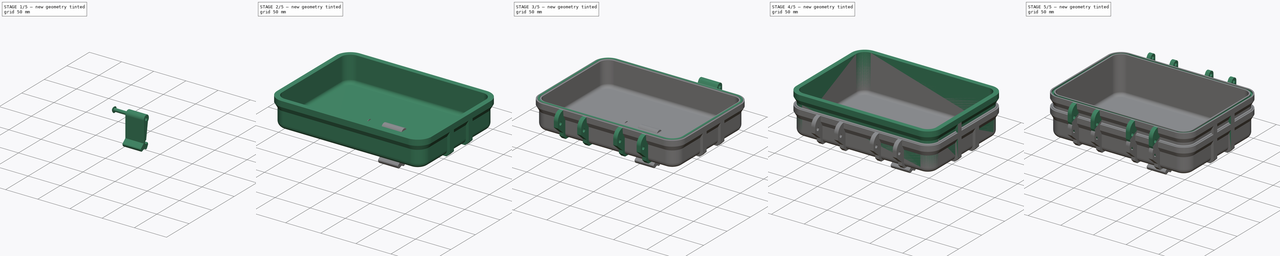
[diagram: build sequence overview — one tinted view per stage of 5, left to right]
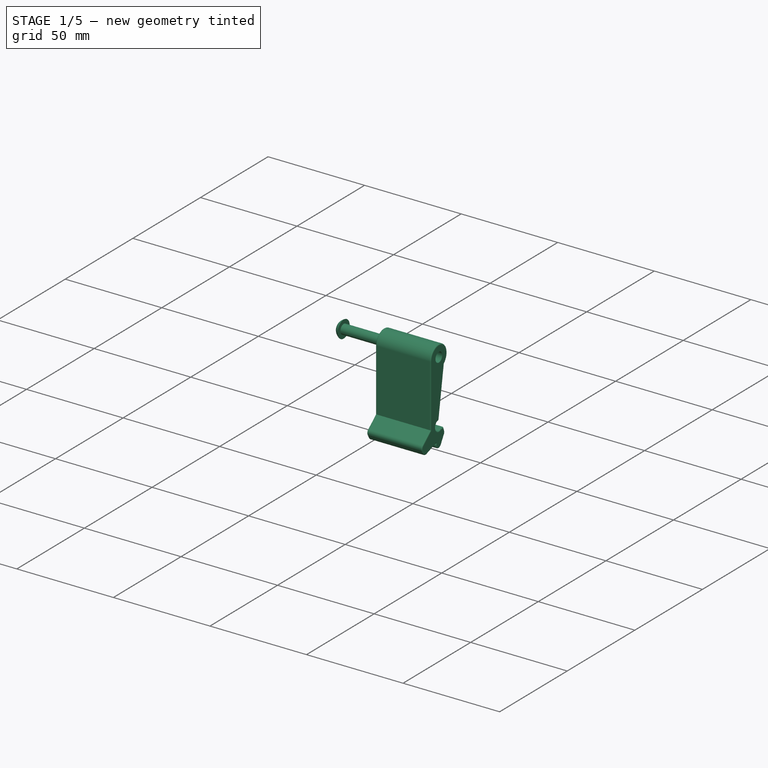
[diagram: stage 1 of 5 — iso view after this stage's code; geometry added in this stage tinted green]
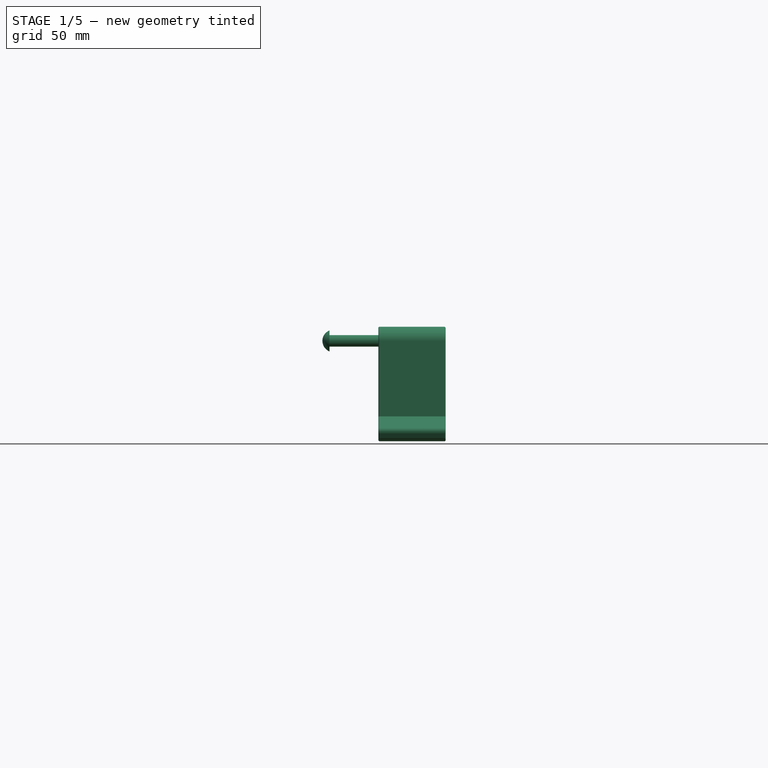
[diagram: stage 1 of 5 — front view after this stage's code; geometry added in this stage tinted green]
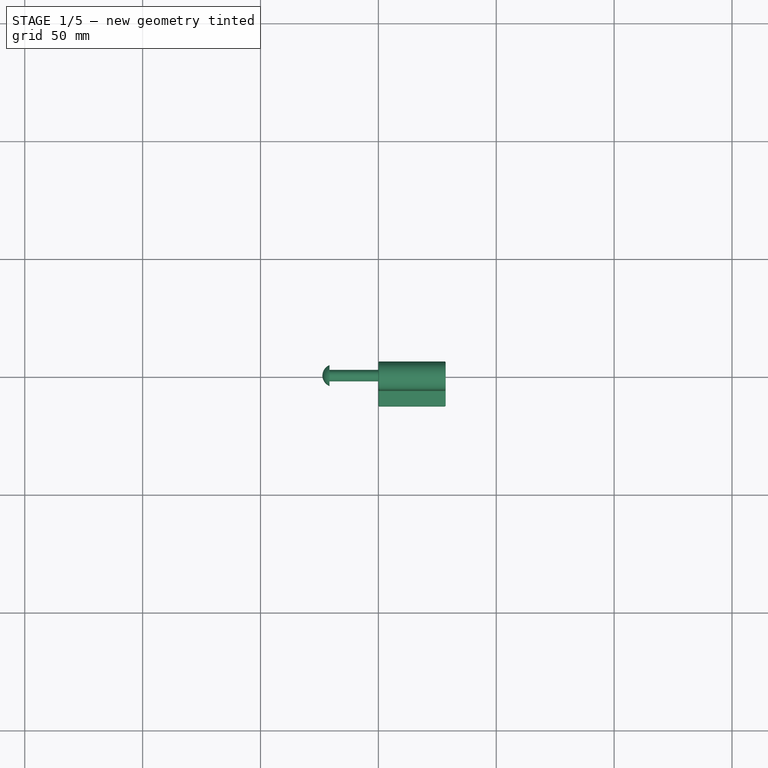
[diagram: stage 1 of 5 — top view after this stage's code; geometry added in this stage tinted green]
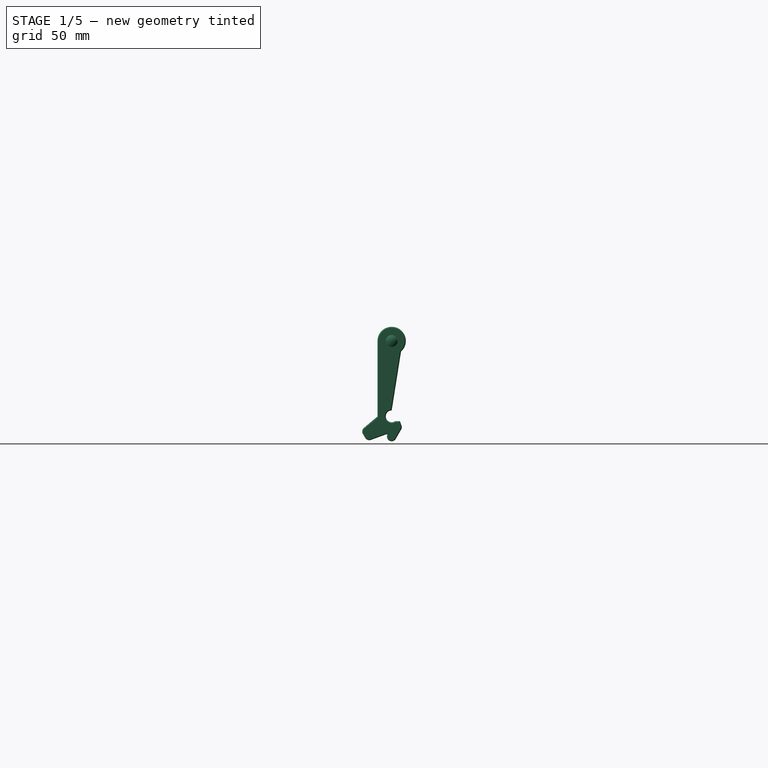
[diagram: stage 1 of 5 — right view after this stage's code; geometry added in this stage tinted green]
FCSTD DOCUMENT  (FreeCAD 1.0R39319 (Git))
Label: Beginner
License: All rights reserved
LicenseURL: https://en.wikipedia.org/wiki/All_rights_reserved
objects: Sketcher::SketchObject×15, PartDesign::Pad×10, PartDesign::Mirrored×6, PartDesign::Fillet×4, PartDesign::Body×4, PartDesign::AdditivePipe×3, PartDesign::Thickness×2, PartDesign::LinearPattern×2, PartDesign::MultiTransform×2, PartDesign::SubtractivePipe×1, PartDesign::Revolution×1
note: 117 computed .brp shape members not serialized (recipe doc carries the construction recipe); baked Part::Feature solids carry a one-line shape summary decoded from their .brp

FEATURE [PartDesign::Body] Body001  label="Part2"
  AllowCompound = false
  Group = -> [Sketch007,Pad004,Fillet001,Thickness001,Sketch008,AdditivePipe001,Sketch009,Pad005,Mirrored002,Sketch010,Pad006,Sketch011,Pad007,MultiTransform001,LinearPattern001,Mirrored003,Sketch012,AdditivePipe002,Sketch013,Pad008,Mirrored004]
  Origin = -> Origin001
  Placement = pos=(-216,20.1367,-3.72285) rot=(0,-1,0;3.14159rad)
  Tip = -> Mirrored004
FEATURE [Sketcher::SketchObject] Sketch014
  ArcFitTolerance = 1e-06
  AttachmentSupport = -> [XZ_Plane002]
  FullyConstrained = true
  MakeInternals = false
  MapMode = 5
  Placement = pos=(0,0,0) rot=(1,0,0;1.5708rad)
  sketch-geometry (5):
    g0: LineSegment StartX=0 StartY=0 StartZ=0 EndX=0 EndY=2.45 EndZ=0
    g1: LineSegment StartX=0 StartY=2.45 StartZ=0 EndX=20.75 EndY=2.45 EndZ=0
    g2: LineSegment StartX=23.75 StartY=0 StartZ=0 EndX=0 EndY=0 EndZ=0
    g3: LineSegment StartX=20.75 StartY=2.45 StartZ=0 EndX=20.75 EndY=4.44972 EndZ=0
    g4: ArcOfCircle CenterX=18.95 CenterY=0 CenterZ=0 NormalX=0 NormalY=0 NormalZ=1 AngleXU=0 Radius=4.8 StartAngle=0 EndAngle=1.1864
  constraints (15):
    c: Coincident(g-1,g0)
    c: PointOnObject(g0,g-2)
    c: Coincident(g0,g1)
    c: Horizontal(g1)
    c: PointOnObject(g2,g-1)
    c: Coincident(g2,g0)
    c: DistanceY(g0,g0) = 2.45
    c: DistanceX(g1,g1) = 20.75
    c: DistanceX(g2,g2) = 23.75
    c: Vertical(g3)
    c: Coincident(g3,g1)
    c: PointOnObject(g4,g2)
    c: Coincident(g4,g2)
    c: Radius(g4) = 4.8
    c: Coincident(g3,g4)
FEATURE [PartDesign::Revolution] Revolution
  Angle = 360
  Angle2 = 60
  Axis = (1,0,0)
  Base = (0,0,0)
  Placement = pos=(0,0,0) rot=(1,0,0;1.5708rad)
  Profile = -> Sketch014
  ReferenceAxis = -> X_Axis002
  Refine = true
  Suppressed = false
  Type = 0
FEATURE [PartDesign::Mirrored] Mirrored005
  BaseFeature = -> Revolution
  MirrorPlane = -> Sketch014 [V_Axis]
  Originals = -> [Revolution]
  Placement = pos=(0,0,0) rot=(1,0,0;1.5708rad)
  Refine = true
  Suppressed = false
  TransformMode = 0
FEATURE [PartDesign::Body] Body002  label="Part3"
  AllowCompound = false
  Group = -> [Sketch014,Revolution,Mirrored005]
  Origin = -> Origin002
  Placement = pos=(0,-169,-79) rot=(0,0,1;0rad)
  Tip = -> Mirrored005
FEATURE [Sketcher::SketchObject] Sketch015
  ArcFitTolerance = 1e-06
  AttachmentSupport = -> [YZ_Plane003]
  FullyConstrained = true
  MakeInternals = false
  MapMode = 5
  Placement = pos=(0,0,0) rot=(0.57735,0.57735,0.57735;2.0944rad)
  sketch-geometry (18):
    g0: Circle CenterX=0 CenterY=0 CenterZ=0 NormalX=0 NormalY=0 NormalZ=1 AngleXU=0 Radius=2.5
    g1: ArcOfCircle CenterX=0 CenterY=0 CenterZ=0 NormalX=0 NormalY=0 NormalZ=1 AngleXU=0 Radius=6 StartAngle=5.4328 EndAngle=9.42478
    g2: LineSegment StartX=-6 StartY=2.2e-15 StartZ=0 EndX=-6 EndY=-32 EndZ=0
    g3: LineSegment StartX=-6 StartY=-32 StartZ=0 EndX=-11.7856 EndY=-36.8547 EndZ=0
    g4: LineSegment StartX=-12.2321 StartY=-39.3868 StartZ=0 EndX=-11.2321 EndY=-41.1188 EndZ=0
    g5: LineSegment StartX=-8.81596 StartY=-41.9982 StartZ=0 EndX=-1.61678 EndY=-39.3779 EndZ=0
    g6: LineSegment StartX=3.95815 StartY=-4.50922 StartZ=0 EndX=0 EndY=-29.5 EndZ=0
    g7: ArcOfCircle CenterX=0 CenterY=-32 CenterZ=0 NormalX=0 NormalY=0 NormalZ=1 AngleXU=0 Radius=2.5 StartAngle=1.5708 EndAngle=5.35589
    g8: ArcOfCircle CenterX=0 CenterY=-40.5552 CenterZ=0 NormalX=0 NormalY=0 NormalZ=1 AngleXU=0 Radius=2 StartAngle=2.51221 EndAngle=5.75959
    g9: LineSegment StartX=1.73205 StartY=-41.5552 StartZ=0 EndX=4.03671 EndY=-37.5634 EndZ=0
    g10: LineSegment StartX=4.18404 StartY=-35.8794 StartZ=0 EndX=3.5 EndY=-34 EndZ=0
    g11: LineSegment StartX=3.5 StartY=-34 StartZ=0 EndX=1.5 EndY=-34 EndZ=0
    g12: ArcOfCircle CenterX=2.30466 CenterY=-36.5634 CenterZ=0 NormalX=0 NormalY=0 NormalZ=1 AngleXU=0 Radius=2 StartAngle=5.75959 EndAngle=6.63225
    g13: GeomPoint [constr] X=4.50301 Y=-36.7558 Z=0
    g14: ArcOfCircle CenterX=-9.5 CenterY=-40.1188 CenterZ=0 NormalX=0 NormalY=0 NormalZ=1 AngleXU=0 Radius=2 StartAngle=3.66519 EndAngle=5.06145
    g15: GeomPoint [constr] X=-10.393 Y=-42.5722 Z=0
    g16: ArcOfCircle CenterX=-10.5 CenterY=-38.3868 CenterZ=0 NormalX=0 NormalY=0 NormalZ=1 AngleXU=0 Radius=2 StartAngle=2.26893 EndAngle=3.66519
    g17: GeomPoint [constr] X=-13.0712 Y=-37.9334 Z=0
  constraints (47):
    c: Diameter(g0) = 5
    c: Coincident(g0,g-1)
    c: Coincident(g1,g0)
    c: Vertical(g2)
    c: Coincident(g2,g3)
    c: Coincident(g1,g6)
    c: PointOnObject(g7,g-2)
    c: Coincident(g7,g6)
    c: Coincident(g8,g5)
    c: Coincident(g10,g11)
    c: Coincident(g11,g7)
    c: Horizontal(g11)
    c: PointOnObject(g13,g10)
    c: PointOnObject(g13,g9)
    c: Tangent(g10,g12) = -1.5708
    c: Tangent(g9,g12) = -1.5708
    c: PointOnObject(g15,g5)
    c: PointOnObject(g15,g4)
    c: Tangent(g5,g14) = -1.5708
    c: Tangent(g4,g14) = -1.5708
    c: PointOnObject(g17,g4)
    c: PointOnObject(g17,g3)
    c: Tangent(g4,g16) = -1.5708
    c: Tangent(g3,g16) = -1.5708
    c: Equal(g16,g14)
    c: Equal(g16,g8)
    c: Equal(g16,g12)
    c: Radius(g16) = 2
    c: Tangent(g8,g9) = -1.5708
    c: Equal(g7,g0)
    c: Angle(g2,g3) = 2.26893
    c: Angle(g5,g3) = 0.349066
    c: Angle(g4,g3) = 1.74533
    c: Distance(g4,g4) = 2
    c: Angle(g9,g2) = 0.523599
    c: Angle(g10,g4) = 0.174533
    c: DistanceY(g2,g2) = 32
    c: DistanceX(g16,g2) = 4.5
    c: Tangent(g1,g2) = -1.5708
    c: Radius(g1) = 6
    c: Angle(g6,g2) = 0.15708
    c: Horizontal(g7,g2)
    c: DistanceY(g7,g7) = 2
    c: PointOnObject(g6,g-2)
    c: Distance(g10,g10) = 2
    c: PointOnObject(g8,g-2)
    c: DistanceX(g11,g11) = 2
FEATURE [PartDesign::Pad] Pad009
  Direction = (1,0,0)
  Length = 28.5
  Length2 = 10
  Placement = pos=(0,0,0) rot=(1,1,1;2.0944rad)
  Profile = -> Sketch015
  ReferenceAxis = -> Sketch015 [N_Axis]
  Refine = true
  Suppressed = false
  Type = 0
FEATURE [PartDesign::Fillet] Fillet002
  Base = -> Pad009 [Edge23]
  BaseFeature = -> Pad009
  Placement = pos=(0,0,0) rot=(1,1,1;2.0944rad)
  Radius = 0.25
  Refine = true
  SupportTransform = false
  Suppressed = false
  UseAllEdges = false
FEATURE [PartDesign::Fillet] Fillet003
  Base = -> Fillet002 [Edge4,Edge23,Edge27,Edge29,Edge31,Edge33,Edge16,Edge14,Edge12,Edge10,Edge35,Edge18,Edge24,Edge26,Edge28,Edge30,Edge32,Edge34,Edge17,Edge13,Edge11,Edge9,Edge7,Edge1,Edge6,Edge8]
  BaseFeature = -> Fillet002
  Placement = pos=(0,0,0) rot=(1,1,1;2.0944rad)
  Radius = 0.5
  Refine = true
  SupportTransform = false
  Suppressed = false
  UseAllEdges = false
FEATURE [PartDesign::Body] Body003  label="Part4"
  AllowCompound = false
  Group = -> [Sketch015,Pad009,Fillet002,Fillet003]
  Origin = -> Origin003
  Placement = pos=(-63,-200,36) rot=(0,0,1;0rad)
  Tip = -> Fillet003
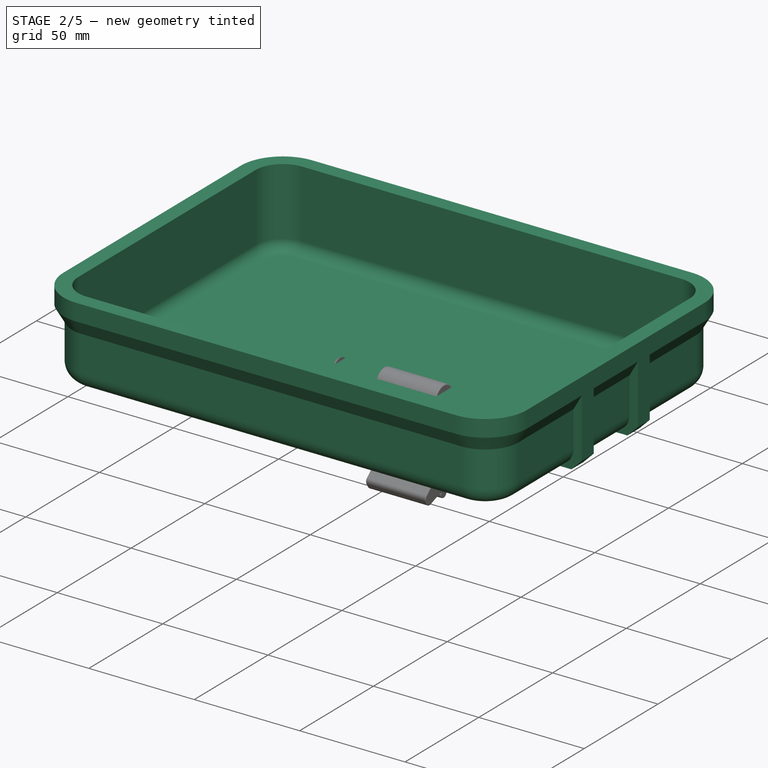
[diagram: stage 2 of 5 — iso view after this stage's code; geometry added in this stage tinted green]
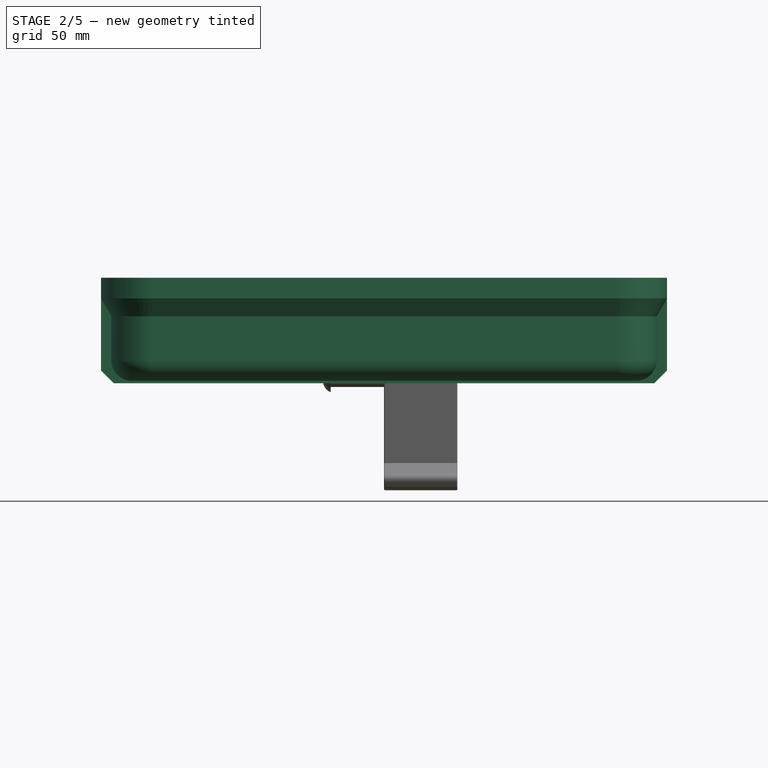
[diagram: stage 2 of 5 — front view after this stage's code; geometry added in this stage tinted green]
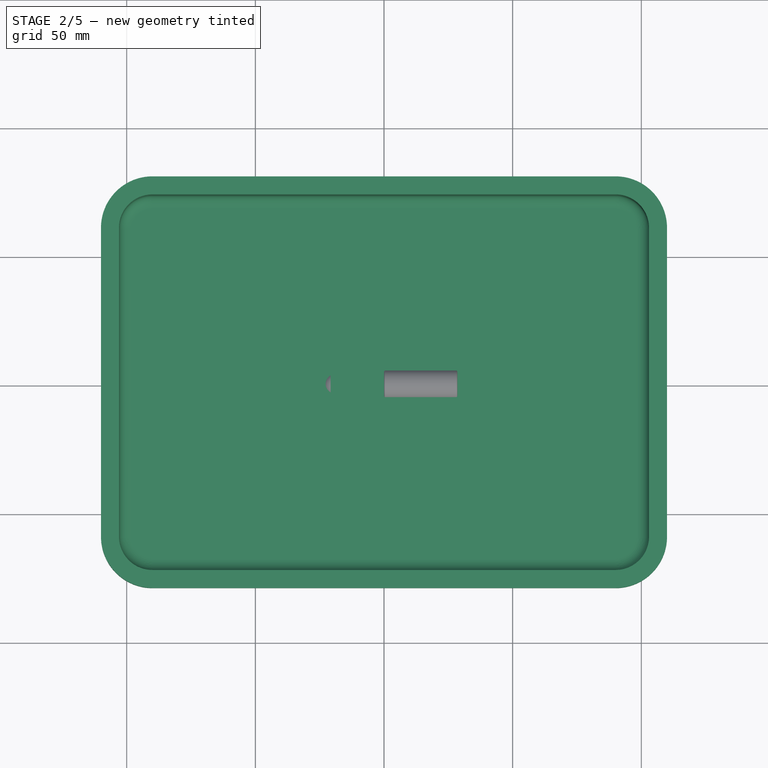
[diagram: stage 2 of 5 — top view after this stage's code; geometry added in this stage tinted green]
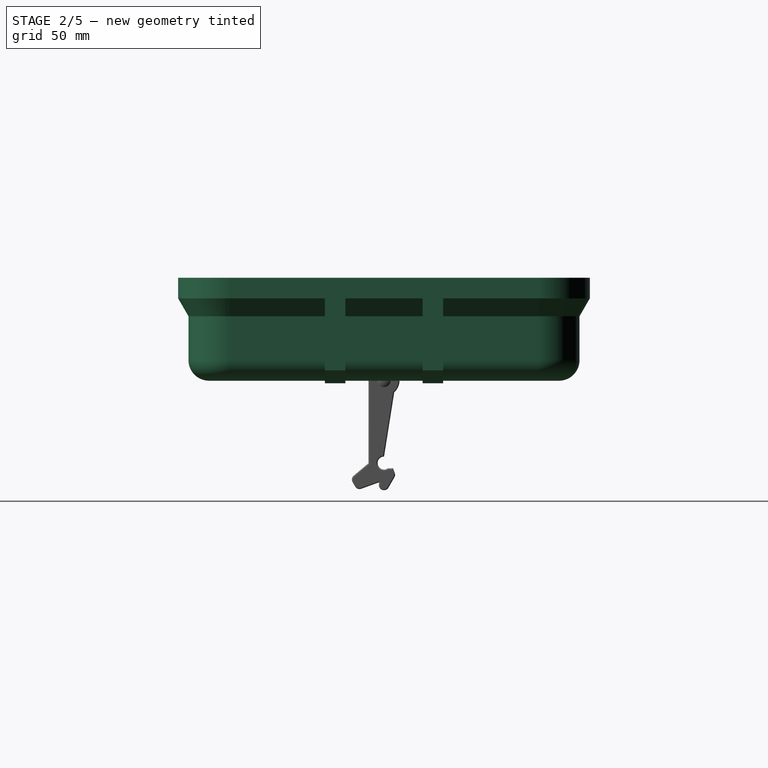
[diagram: stage 2 of 5 — right view after this stage's code; geometry added in this stage tinted green]
FEATURE [PartDesign::Body] Body  label="Part1"
  AllowCompound = false
  Group = -> [Sketch,Pad,Fillet,Thickness,Sketch001,AdditivePipe,Sketch002,Pad001,Mirrored,Sketch003,Pad002,Sketch005,Pad003,MultiTransform,LinearPattern,Mirrored001,Sketch006,SubtractivePipe]
  Origin = -> Origin
  Placement = pos=(0,57,-118) rot=(0,0,1;0rad)
  Tip = -> SubtractivePipe
FEATURE [PartDesign::LinearPattern] LinearPattern001
  Direction = -> X_Axis001
  Length = 35
  Mode = 0
  Occurrences = 2
  Offset = 35
  Refine = true
  Reversed = true
  Suppressed = false
  TransformMode = 0
FEATURE [PartDesign::Mirrored] Mirrored003
  MirrorPlane = -> YZ_Plane001
  Refine = true
  Suppressed = false
  TransformMode = 0
FEATURE [Sketcher::SketchObject] Sketch007
  ArcFitTolerance = 1e-06
  AttachmentSupport = -> [XY_Plane001]
  FullyConstrained = true
  MakeInternals = false
  MapMode = 5
  sketch-geometry (10):
    g0: LineSegment StartX=-106 StartY=60 StartZ=0 EndX=-106 EndY=-60 EndZ=0
    g1: LineSegment StartX=-90 StartY=-76 StartZ=0 EndX=90 EndY=-76 EndZ=0
    g2: LineSegment StartX=106 StartY=-60 StartZ=0 EndX=106 EndY=60 EndZ=0
    g3: LineSegment StartX=90 StartY=76 StartZ=0 EndX=-90 EndY=76 EndZ=0
    g4: ArcOfCircle CenterX=-90 CenterY=60 CenterZ=0 NormalX=0 NormalY=0 NormalZ=1 AngleXU=0 Radius=16 StartAngle=1.5708 EndAngle=3.14159
    g5: ArcOfCircle CenterX=-90 CenterY=-60 CenterZ=0 NormalX=0 NormalY=0 NormalZ=1 AngleXU=0 Radius=16 StartAngle=3.14159 EndAngle=4.71239
    g6: ArcOfCircle CenterX=90 CenterY=-60 CenterZ=0 NormalX=0 NormalY=0 NormalZ=1 AngleXU=0 Radius=16 StartAngle=4.71239 EndAngle=6.28319
    g7: ArcOfCircle CenterX=90 CenterY=60 CenterZ=0 NormalX=0 NormalY=0 NormalZ=1 AngleXU=0 Radius=16 StartAngle=1e-16 EndAngle=1.5708
    g8: GeomPoint [constr] X=-106 Y=76 Z=0
    g9: GeomPoint [constr] X=106 Y=-76 Z=0
  constraints (22):
    c: Tangent(g0,g4) = -1.5708
    c: Tangent(g0,g5) = -1.5708
    c: Tangent(g1,g5) = -1.5708
    c: Tangent(g1,g6) = -1.5708
    c: Tangent(g2,g6) = -1.5708
    c: Tangent(g2,g7) = -1.5708
    c: Tangent(g3,g7) = -1.5708
    c: Tangent(g3,g4) = -1.5708
    c: Vertical(g0)
    c: Vertical(g2)
    c: Horizontal(g1)
    c: Horizontal(g3)
    c: Equal(g5,g6)
    c: PointOnObject(g8,g0)
    c: PointOnObject(g8,g3)
    c: PointOnObject(g9,g1)
    c: PointOnObject(g9,g2)
    c: Radius(g5) = 16
    c: Distance(g3,g3) = 180
    c: Distance(g0,g0) = 120
    c: Symmetric(g2,g0,g-2)
    c: Symmetric(g3,g1,g-1)
FEATURE [PartDesign::Pad] Pad004
  Direction = (0,0,1)
  Length = 40
  Length2 = 10
  Profile = -> Sketch007
  ReferenceAxis = -> Sketch007 [N_Axis]
  Refine = true
  Suppressed = false
  Type = 0
FEATURE [PartDesign::Fillet] Fillet001
  Base = -> Pad004 [Face9]
  BaseFeature = -> Pad004
  Radius = 8
  Refine = true
  SupportTransform = false
  Suppressed = false
  UseAllEdges = false
FEATURE [PartDesign::Thickness] Thickness001
  Base = -> Fillet001 [Face4]
  BaseFeature = -> Fillet001
  Intersection = false
  Join = 0
  Mode = 0
  Refine = true
  Reversed = true
  SupportTransform = false
  Suppressed = false
  Value = 3
FEATURE [Sketcher::SketchObject] Sketch008
  ArcFitTolerance = 1e-06
  AttachmentSupport = -> [XZ_Plane001]
  ExternalGeometry = -> [Thickness001]
  FullyConstrained = true
  MakeInternals = false
  MapMode = 5
  Placement = pos=(0,0,0) rot=(1,0,0;1.5708rad)
  sketch-geometry (4):
    g0: LineSegment StartX=103 StartY=40 StartZ=0 EndX=110 EndY=40 EndZ=0
    g1: LineSegment StartX=110 StartY=40 StartZ=0 EndX=110 EndY=32 EndZ=0
    g2: LineSegment StartX=110 StartY=32 StartZ=0 EndX=103 EndY=19.8756 EndZ=0
    g3: LineSegment StartX=103 StartY=19.8756 StartZ=0 EndX=103 EndY=40 EndZ=0
  constraints (11):
    c: Coincident(g-4,g0)
    c: Horizontal(g0)
    c: Coincident(g0,g1)
    c: Vertical(g1)
    c: Coincident(g1,g2)
    c: PointOnObject(g2,g-4)
    c: Coincident(g2,g3)
    c: Coincident(g3,g0)
    c: DistanceX(g0,g0) = 7
    c: DistanceY(g1,g1) = 8
    c: Angle(g2,g3) = 0.523599
FEATURE [PartDesign::AdditivePipe] AdditivePipe001
  AuxilleryCurvelinear = true
  AuxillerySpineTangent = false
  BaseFeature = -> Thickness001
  Binormal = (0,0,0)
  Mode = 0
  Profile = -> Sketch008
  Refine = true
  Spine = -> Sketch007
  SpineTangent = false
  Suppressed = false
  Transformation = 0
  Transition = 0
FEATURE [Sketcher::SketchObject] Sketch009
  ArcFitTolerance = 1e-06
  AttachmentOffset = pos=(0,0,15) rot=(0,0,1;0rad)
  AttachmentSupport = -> [XZ_Plane001]
  ExternalGeometry = -> [AdditivePipe001]
  FullyConstrained = true
  MakeInternals = false
  MapMode = 5
  Placement = pos=(0,-15,3.3e-15) rot=(1,0,0;1.5708rad)
  sketch-geometry (16):
    g0: LineSegment StartX=-110 StartY=40 StartZ=0 EndX=-110 EndY=4 EndZ=0
    g1: LineSegment StartX=-105 StartY=-1 StartZ=0 EndX=105 EndY=-1 EndZ=0
    g2: LineSegment StartX=110 StartY=4 StartZ=0 EndX=110 EndY=40 EndZ=0
    g3: LineSegment StartX=110 StartY=40 StartZ=0 EndX=103 EndY=40 EndZ=0
    g4: LineSegment StartX=-103 StartY=40 StartZ=0 EndX=-110 EndY=40 EndZ=0
    g5: ArcOfCircle [constr] CenterX=-105 CenterY=4 CenterZ=0 NormalX=0 NormalY=0 NormalZ=1 AngleXU=0 Radius=5 StartAngle=3.14159 EndAngle=4.71239
    g6: GeomPoint [constr] X=-110 Y=-1 Z=0
    g7: LineSegment StartX=-110 StartY=4 StartZ=0 EndX=-105 EndY=-1 EndZ=0
    g8: ArcOfCircle [constr] CenterX=105 CenterY=4 CenterZ=0 NormalX=0 NormalY=0 NormalZ=1 AngleXU=0 Radius=5 StartAngle=4.71239 EndAngle=6.28319
    g9: GeomPoint [constr] X=110 Y=-1 Z=0
    g10: LineSegment StartX=105 StartY=-1 StartZ=0 EndX=110 EndY=4 EndZ=0
    g11: LineSegment StartX=103 StartY=40 StartZ=0 EndX=103 EndY=8 EndZ=0
    g12: ArcOfCircle CenterX=98 CenterY=8 CenterZ=0 NormalX=0 NormalY=0 NormalZ=1 AngleXU=0 Radius=5 StartAngle=4.71239 EndAngle=6.28319
    g13: LineSegment StartX=-103 StartY=40 StartZ=0 EndX=-103 EndY=8 EndZ=0
    g14: ArcOfCircle CenterX=-98 CenterY=8 CenterZ=0 NormalX=0 NormalY=0 NormalZ=1 AngleXU=0 Radius=5 StartAngle=3.14159 EndAngle=4.71239
    g15: LineSegment StartX=-98 StartY=3 StartZ=0 EndX=98 EndY=3 EndZ=0
  constraints (38):
    c: Coincident(g2,g3)
    c: Coincident(g4,g0)
    c: Vertical(g0)
    c: Vertical(g2)
    c: Horizontal(g1)
    c: PointOnObject(g-6,g4)
    c: Symmetric(g2,g0,g-2)
    c: PointOnObject(g3,g-3)
    c: PointOnObject(g4,g-6)
    c: DistanceX(g0,g4) = 7
    c: PointOnObject(g6,g1)
    c: PointOnObject(g6,g0)
    c: Tangent(g1,g5) = -1.5708
    c: Tangent(g0,g5) = -1.5708
    c: Coincident(g7,g1)
    c: Coincident(g7,g0)
    c: PointOnObject(g9,g2)
    c: PointOnObject(g9,g1)
    c: Tangent(g2,g8) = -1.5708
    c: Tangent(g1,g8) = -1.5708
    c: Coincident(g10,g2)
    c: Coincident(g10,g1)
    c: Equal(g5,g8)
    c: DistanceY(g7,g7) = 5
    c: Coincident(g11,g-4)
    c: Vertical(g11)
    c: Tangent(g11,g12) = 1.5708
    c: Coincident(g4,g13)
    c: Coincident(g13,g-6)
    c: Tangent(g13,g14) = -1.5708
    c: Distance(g1,g-1) = 1
    c: Horizontal(g4)
    c: Horizontal(g3)
    c: PointOnObject(g11,g3)
    c: Coincident(g15,g14)
    c: Coincident(g15,g12)
    c: Coincident(g14,g-5)
    c: Coincident(g12,g-4)
FEATURE [PartDesign::Pad] Pad005
  BaseFeature = -> AdditivePipe001
  Direction = (0,-1,2e-16)
  Length = 8
  Length2 = 10
  Profile = -> Sketch009
  ReferenceAxis = -> Sketch009 [N_Axis]
  Refine = true
  Suppressed = false
  Type = 0
FEATURE [PartDesign::Mirrored] Mirrored002
  BaseFeature = -> Pad005
  MirrorPlane = -> XZ_Plane001
  Originals = -> [Pad005]
  Refine = true
  Suppressed = false
  TransformMode = 0
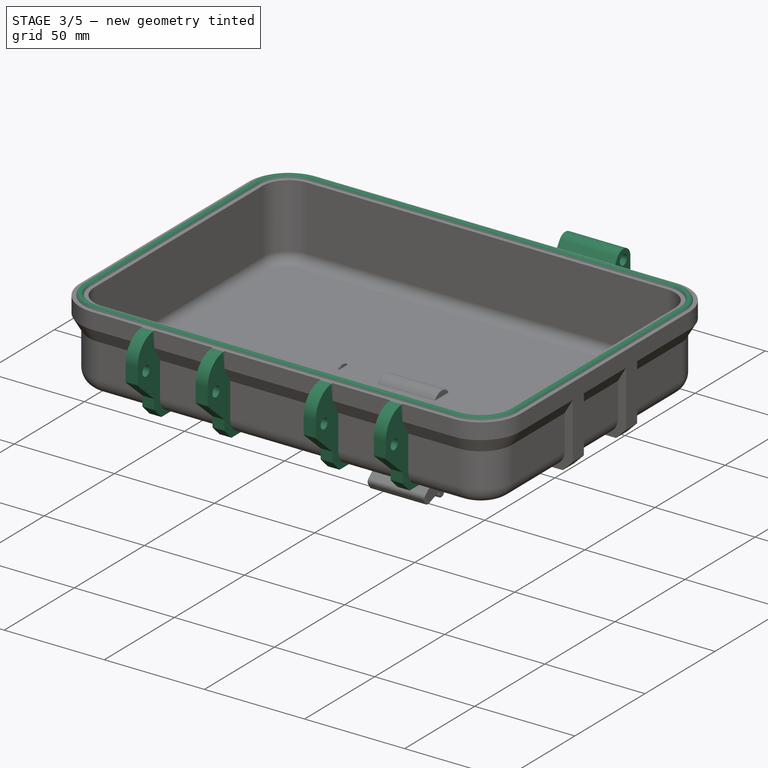
[diagram: stage 3 of 5 — iso view after this stage's code; geometry added in this stage tinted green]
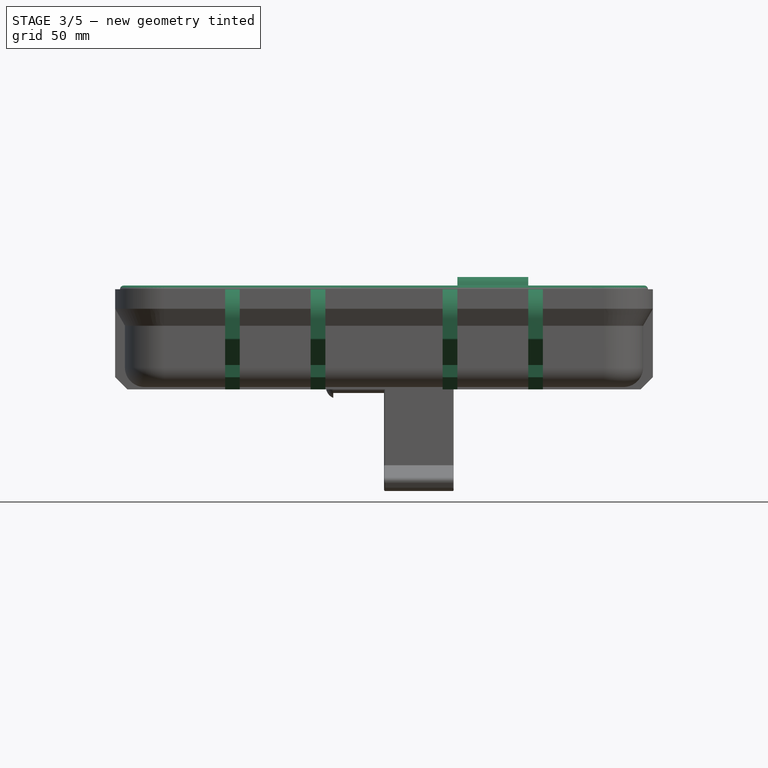
[diagram: stage 3 of 5 — front view after this stage's code; geometry added in this stage tinted green]
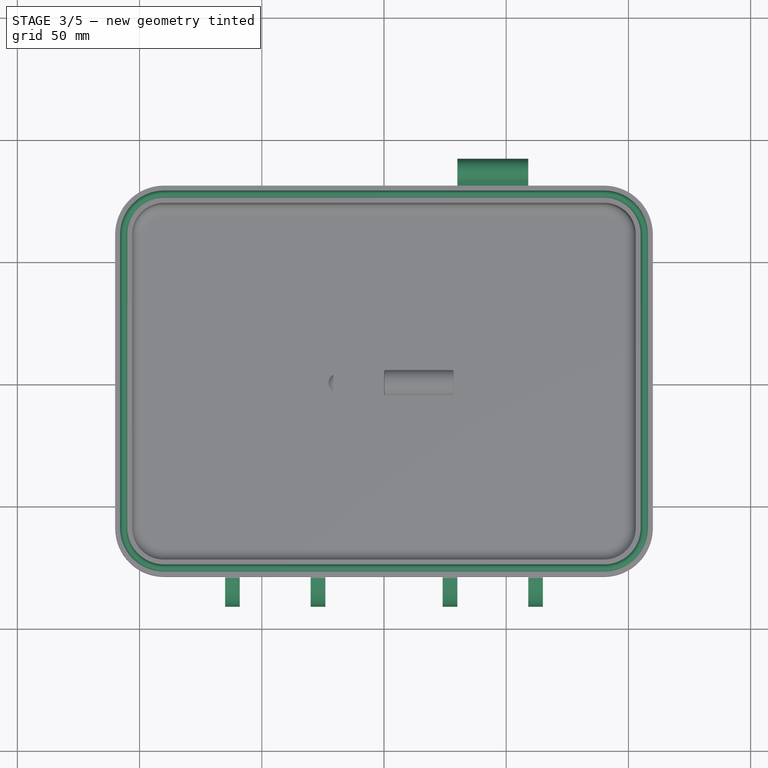
[diagram: stage 3 of 5 — top view after this stage's code; geometry added in this stage tinted green]
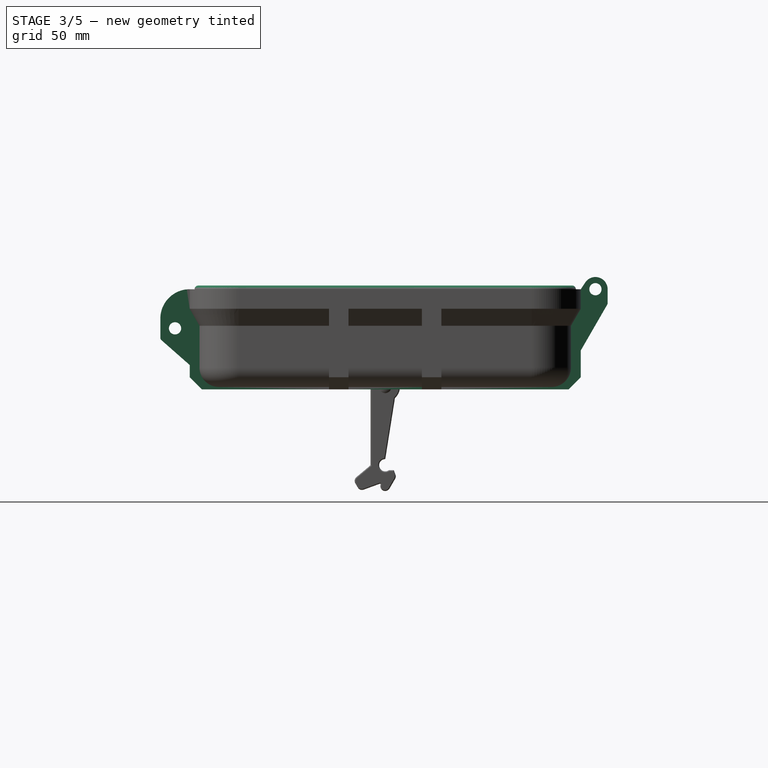
[diagram: stage 3 of 5 — right view after this stage's code; geometry added in this stage tinted green]
FEATURE [Sketcher::SketchObject] Sketch010
  ArcFitTolerance = 1e-06
  AttachmentOffset = pos=(0,0,65) rot=(0,0,1;0rad)
  AttachmentSupport = -> [YZ_Plane001]
  ExternalGeometry = -> [Mirrored002]
  FullyConstrained = true
  MakeInternals = false
  MapMode = 5
  Placement = pos=(65,0,0) rot=(0.57735,0.57735,0.57735;2.0944rad)
  sketch-geometry (16):
    g0: LineSegment StartX=-73 StartY=40 StartZ=0 EndX=-73 EndY=8 EndZ=0
    g1: ArcOfCircle CenterX=-68 CenterY=8 CenterZ=0 NormalX=0 NormalY=0 NormalZ=1 AngleXU=0 Radius=5 StartAngle=3.14159 EndAngle=4.71239
    g2: LineSegment StartX=-68 StartY=3 StartZ=0 EndX=68 EndY=3 EndZ=0
    g3: ArcOfCircle CenterX=68 CenterY=8 CenterZ=0 NormalX=0 NormalY=0 NormalZ=1 AngleXU=0 Radius=5 StartAngle=4.71239 EndAngle=6.28319
    g4: LineSegment StartX=73 StartY=8 StartZ=0 EndX=73 EndY=40 EndZ=0
    g5: LineSegment StartX=-80 StartY=40 StartZ=0 EndX=-80 EndY=4 EndZ=0
    g6: LineSegment StartX=-75 StartY=-1 StartZ=0 EndX=75 EndY=-1 EndZ=0
    g7: LineSegment StartX=80 StartY=4 StartZ=0 EndX=80 EndY=40 EndZ=0
    g8: LineSegment StartX=80 StartY=40 StartZ=0 EndX=73 EndY=40 EndZ=0
    g9: LineSegment StartX=-73 StartY=40 StartZ=0 EndX=-80 EndY=40 EndZ=0
    g10: ArcOfCircle [constr] CenterX=75 CenterY=4 CenterZ=0 NormalX=0 NormalY=0 NormalZ=1 AngleXU=0 Radius=5 StartAngle=4.71239 EndAngle=6.28319
    g11: GeomPoint [constr] X=80 Y=-1 Z=0
    g12: LineSegment StartX=75 StartY=-1 StartZ=0 EndX=80 EndY=4 EndZ=0
    g13: ArcOfCircle [constr] CenterX=-75 CenterY=4 CenterZ=0 NormalX=0 NormalY=0 NormalZ=1 AngleXU=0 Radius=5 StartAngle=3.14159 EndAngle=4.71239
    g14: GeomPoint [constr] X=-80 Y=-1 Z=0
    g15: LineSegment StartX=-80 StartY=4 StartZ=0 EndX=-75 EndY=-1 EndZ=0
  constraints (36):
    c: Coincident(g-3,g0)
    c: Coincident(g0,g-4)
    c: Tangent(g0,g1) = -1.5708
    c: Tangent(g2,g3) = -1.5708
    c: Coincident(g3,g-6)
    c: Tangent(g3,g4) = -1.5708
    c: Coincident(g1,g2)
    c: Coincident(g1,g-4)
    c: Coincident(g2,g-6)
    c: Coincident(g7,g8)
    c: Coincident(g9,g5)
    c: Vertical(g5)
    c: Vertical(g7)
    c: Horizontal(g6)
    c: Symmetric(g7,g5,g-2)
    c: PointOnObject(g0,g9)
    c: Coincident(g8,g4)
    c: PointOnObject(g9,g0)
    c: DistanceX(g9,g9) = 7
    c: PointOnObject(g11,g7)
    c: PointOnObject(g11,g6)
    c: Tangent(g7,g10) = -1.5708
    c: Tangent(g6,g10) = -1.5708
    c: Coincident(g12,g7)
    c: Coincident(g12,g6)
    c: PointOnObject(g14,g6)
    c: PointOnObject(g14,g5)
    c: Tangent(g6,g13) = -1.5708
    c: Tangent(g5,g13) = -1.5708
    c: Coincident(g15,g6)
    c: Coincident(g15,g5)
    c: Equal(g13,g10)
    c: DistanceY(g15,g15) = 5
    c: Distance(g6,g-1) = 1
    c: Horizontal(g8)
    c: Horizontal(g9)
FEATURE [PartDesign::Pad] Pad006
  BaseFeature = -> Mirrored002
  Direction = (1,0,0)
  Length = 6
  Length2 = 10
  Profile = -> Sketch010
  ReferenceAxis = -> Sketch010 [N_Axis]
  Refine = true
  Reversed = true
  Suppressed = false
  Type = 0
FEATURE [Sketcher::SketchObject] Sketch011
  ArcFitTolerance = 1e-06
  AttachmentOffset = pos=(0,0,65) rot=(0,0,1;0rad)
  AttachmentSupport = -> [YZ_Plane001]
  ExternalGeometry = -> [Pad006]
  FullyConstrained = true
  MakeInternals = false
  MapMode = 5
  Placement = pos=(65,0,0) rot=(0.57735,0.57735,0.57735;2.0944rad)
  sketch-geometry (8):
    g0: LineSegment StartX=-80 StartY=40 StartZ=0 EndX=-80 EndY=9 EndZ=0
    g1: LineSegment [constr] StartX=-92 StartY=24 StartZ=0 EndX=-86 EndY=24 EndZ=0
    g2: Circle CenterX=-86 CenterY=24 CenterZ=0 NormalX=0 NormalY=0 NormalZ=1 AngleXU=0 Radius=2.5
    g3: LineSegment StartX=-80 StartY=9 StartZ=0 EndX=-91.6602 EndY=19.2489 EndZ=0
    g4: LineSegment StartX=-92 StartY=20 StartZ=0 EndX=-92 EndY=28 EndZ=0
    g5: ArcOfCircle CenterX=-80 CenterY=28 CenterZ=0 NormalX=0 NormalY=0 NormalZ=1 AngleXU=0 Radius=12 StartAngle=1.5708 EndAngle=3.14159
    g6: ArcOfCircle CenterX=-91 CenterY=20 CenterZ=0 NormalX=0 NormalY=0 NormalZ=1 AngleXU=0 Radius=1 StartAngle=3.14159 EndAngle=3.99132
    g7: GeomPoint [constr] X=-92 Y=19.5476 Z=0
  constraints (20):
    c: Coincident(g-3,g0)
    c: Distance(g1) = 6
    c: Horizontal(g1)
    c: Diameter(g2) = 5
    c: Coincident(g2,g1)
    c: Vertical(g0)
    c: DistanceY(g-6,g0) = 5
    c: Coincident(g0,g3)
    c: Vertical(g4)
    c: Tangent(g4,g5) = 1.5708
    c: Coincident(g5,g0)
    c: DistanceX(g4,g0) = 12
    c: PointOnObject(g7,g3)
    c: PointOnObject(g7,g4)
    c: Tangent(g3,g6) = 1.5708
    c: Tangent(g4,g6) = 1.5708
    c: Radius(g6) = 1
    c: DistanceY(g4,g4) = 8
    c: Vertical(g5,g-6)
    c: Symmetric(g4,g4,g1)
FEATURE [PartDesign::Pad] Pad007
  BaseFeature = -> Pad006
  Direction = (1,0,0)
  Length = 6
  Length2 = 10
  Profile = -> Sketch011
  ReferenceAxis = -> Sketch011 [N_Axis]
  Refine = true
  Reversed = true
  Suppressed = false
  Type = 0
FEATURE [PartDesign::MultiTransform] MultiTransform001
  BaseFeature = -> Pad007
  Originals = -> [Pad006,Pad007]
  Refine = true
  Suppressed = false
  TransformMode = 0
  Transformations = -> [LinearPattern001,Mirrored003]
FEATURE [Sketcher::SketchObject] Sketch012
  ArcFitTolerance = 1e-06
  AttachmentSupport = -> [XZ_Plane001]
  ExternalGeometry = -> [MultiTransform001]
  FullyConstrained = true
  MakeInternals = false
  MapMode = 5
  Placement = pos=(0,0,0) rot=(1,0,0;1.5708rad)
  sketch-geometry (4):
    g0: ArcOfCircle CenterX=106.5 CenterY=40 CenterZ=0 NormalX=0 NormalY=0 NormalZ=1 AngleXU=0 Radius=1.5 StartAngle=3.4449e-12 EndAngle=3.14159
    g1: ArcOfCircle CenterX=106.5 CenterY=37.5 CenterZ=0 NormalX=0 NormalY=0 NormalZ=1 AngleXU=0 Radius=1.5 StartAngle=3.14159 EndAngle=6.28319
    g2: LineSegment StartX=108 StartY=40 StartZ=0 EndX=108 EndY=37.5 EndZ=0
    g3: LineSegment StartX=105 StartY=40 StartZ=0 EndX=105 EndY=37.5 EndZ=0
  constraints (9):
    c: Tangent(g0,g2) = 1.5708
    c: Tangent(g0,g3) = -1.5708
    c: Tangent(g1,g2) = 1.5708
    c: Tangent(g1,g3) = -1.5708
    c: Equal(g0,g1)
    c: Vertical(g3)
    c: Radius(g1) = 1.5
    c: Symmetric(g-3,g-4,g0)
    c: DistanceY(g1,g0) = 2.5
FEATURE [PartDesign::AdditivePipe] AdditivePipe002
  AuxilleryCurvelinear = true
  AuxillerySpineTangent = false
  BaseFeature = -> MultiTransform001
  Binormal = (0,0,0)
  Mode = 0
  Profile = -> Sketch012
  Refine = true
  Spine = -> Sketch007
  SpineTangent = false
  Suppressed = false
  Transformation = 0
  Transition = 0
FEATURE [Sketcher::SketchObject] Sketch013
  ArcFitTolerance = 1e-06
  AttachmentOffset = pos=(0,0,59) rot=(0,0,1;0rad)
  AttachmentSupport = -> [YZ_Plane001]
  ExternalGeometry = -> [AdditivePipe002]
  FullyConstrained = true
  MakeInternals = false
  MapMode = 5
  Placement = pos=(59,0,0) rot=(0.57735,0.57735,0.57735;2.0944rad)
  sketch-geometry (10):
    g0: LineSegment StartX=80 StartY=40 StartZ=0 EndX=81.8333 EndY=42.7639 EndZ=0
    g1: ArcOfCircle CenterX=86 CenterY=40 CenterZ=0 NormalX=0 NormalY=0 NormalZ=1 AngleXU=0 Radius=5 StartAngle=6e-16 EndAngle=2.55591
    g2: LineSegment StartX=91 StartY=40 StartZ=0 EndX=91 EndY=34.2487 EndZ=0
    g3: LineSegment StartX=90.866 StartY=33.7487 StartZ=0 EndX=76 EndY=8 EndZ=0
    g4: LineSegment StartX=76 StartY=8 StartZ=0 EndX=76 EndY=25.0718 EndZ=0
    g5: LineSegment StartX=76 StartY=25.0718 StartZ=0 EndX=80 EndY=32 EndZ=0
    g6: LineSegment StartX=80 StartY=32 StartZ=0 EndX=80 EndY=40 EndZ=0
    g7: ArcOfCircle CenterX=90 CenterY=34.2487 CenterZ=0 NormalX=0 NormalY=0 NormalZ=1 AngleXU=0 Radius=1 StartAngle=5.75959 EndAngle=6.28319
    g8: GeomPoint [constr] X=91 Y=33.9808 Z=0
    g9: Circle CenterX=86 CenterY=40 CenterZ=0 NormalX=0 NormalY=0 NormalZ=1 AngleXU=0 Radius=2.5
  constraints (22):
    c: Coincident(g-4,g0)
    c: Tangent(g0,g1) = 1.5708
    c: Vertical(g2)
    c: Coincident(g3,g-6)
    c: Coincident(g3,g4)
    c: Coincident(g4,g-6)
    c: Coincident(g4,g5)
    c: Coincident(g5,g-5)
    c: Coincident(g5,g6)
    c: Coincident(g6,g0)
    c: PointOnObject(g8,g2)
    c: PointOnObject(g8,g3)
    c: Tangent(g2,g7) = 1.5708
    c: Tangent(g3,g7) = 1.5708
    c: Radius(g7) = 1
    c: Diameter(g9) = 5
    c: Coincident(g9,g1)
    c: Horizontal(g1,g0)
    c: Radius(g1) = 5
    c: Tangent(g1,g2) = 1.5708
    c: Parallel(g3,g5)
    c: DistanceX(g0,g1) = 6
FEATURE [PartDesign::Pad] Pad008
  BaseFeature = -> AdditivePipe002
  Direction = (1,0,0)
  Length = 29
  Length2 = 10
  Profile = -> Sketch013
  ReferenceAxis = -> Sketch013 [N_Axis]
  Refine = true
  Reversed = true
  Suppressed = false
  Type = 0
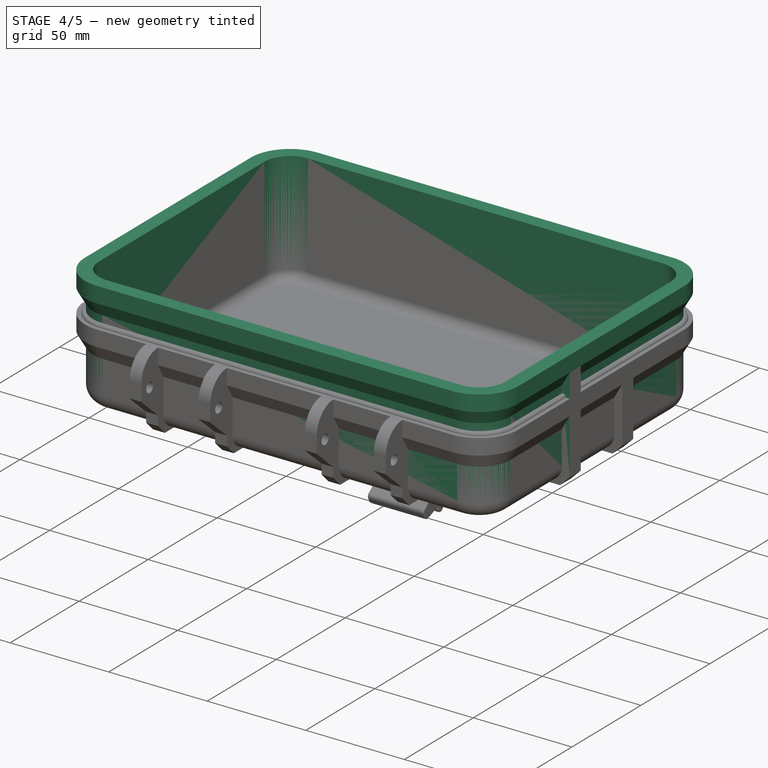
[diagram: stage 4 of 5 — iso view after this stage's code; geometry added in this stage tinted green]
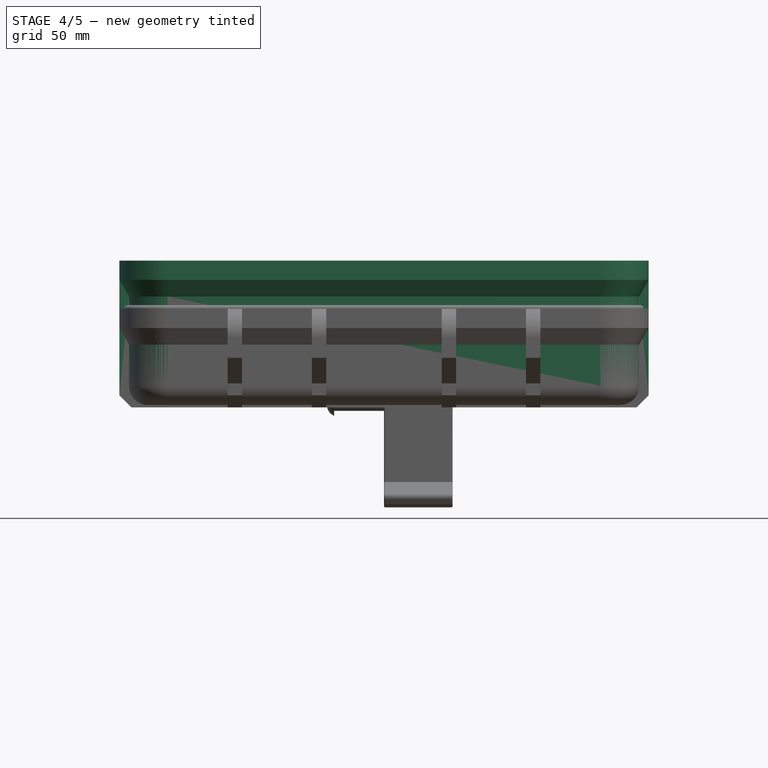
[diagram: stage 4 of 5 — front view after this stage's code; geometry added in this stage tinted green]
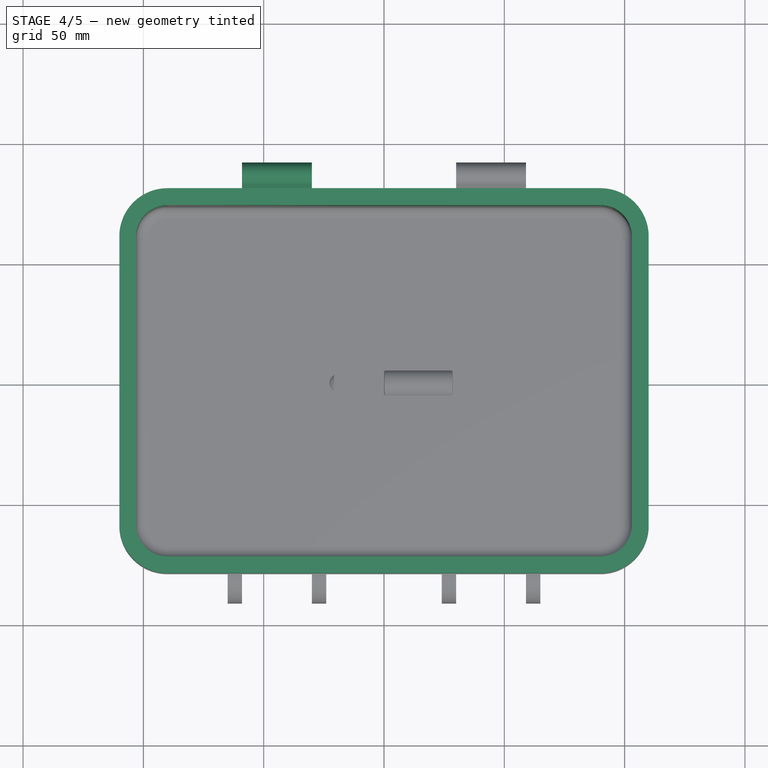
[diagram: stage 4 of 5 — top view after this stage's code; geometry added in this stage tinted green]
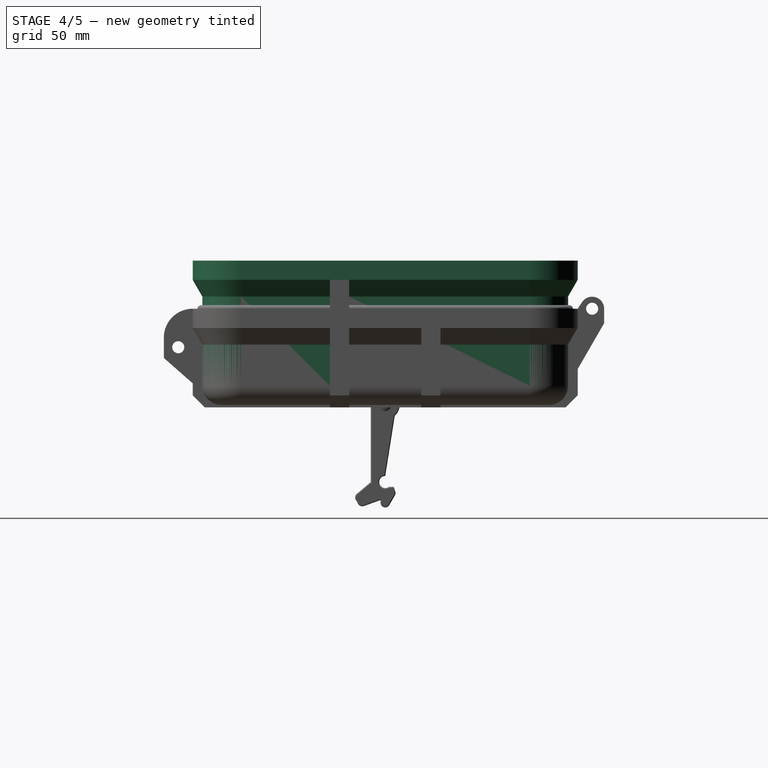
[diagram: stage 4 of 5 — right view after this stage's code; geometry added in this stage tinted green]
FEATURE [Sketcher::SketchObject] Sketch
  ArcFitTolerance = 1e-06
  AttachmentSupport = -> [XY_Plane]
  FullyConstrained = true
  MakeInternals = false
  MapMode = 5
  sketch-geometry (10):
    g0: LineSegment StartX=-106 StartY=60 StartZ=0 EndX=-106 EndY=-60 EndZ=0
    g1: LineSegment StartX=-90 StartY=-76 StartZ=0 EndX=90 EndY=-76 EndZ=0
    g2: LineSegment StartX=106 StartY=-60 StartZ=0 EndX=106 EndY=60 EndZ=0
    g3: LineSegment StartX=90 StartY=76 StartZ=0 EndX=-90 EndY=76 EndZ=0
    g4: ArcOfCircle CenterX=-90 CenterY=60 CenterZ=0 NormalX=0 NormalY=0 NormalZ=1 AngleXU=0 Radius=16 StartAngle=1.5708 EndAngle=3.14159
    g5: ArcOfCircle CenterX=-90 CenterY=-60 CenterZ=0 NormalX=0 NormalY=0 NormalZ=1 AngleXU=0 Radius=16 StartAngle=3.14159 EndAngle=4.71239
    g6: ArcOfCircle CenterX=90 CenterY=-60 CenterZ=0 NormalX=0 NormalY=0 NormalZ=1 AngleXU=0 Radius=16 StartAngle=4.71239 EndAngle=6.28319
    g7: ArcOfCircle CenterX=90 CenterY=60 CenterZ=0 NormalX=0 NormalY=0 NormalZ=1 AngleXU=0 Radius=16 StartAngle=1e-16 EndAngle=1.5708
    g8: GeomPoint [constr] X=-106 Y=76 Z=0
    g9: GeomPoint [constr] X=106 Y=-76 Z=0
  constraints (22):
    c: Tangent(g0,g4) = -1.5708
    c: Tangent(g0,g5) = -1.5708
    c: Tangent(g1,g5) = -1.5708
    c: Tangent(g1,g6) = -1.5708
    c: Tangent(g2,g6) = -1.5708
    c: Tangent(g2,g7) = -1.5708
    c: Tangent(g3,g7) = -1.5708
    c: Tangent(g3,g4) = -1.5708
    c: Vertical(g0)
    c: Vertical(g2)
    c: Horizontal(g1)
    c: Horizontal(g3)
    c: Equal(g5,g6)
    c: PointOnObject(g8,g0)
    c: PointOnObject(g8,g3)
    c: PointOnObject(g9,g1)
    c: PointOnObject(g9,g2)
    c: Radius(g5) = 16
    c: Distance(g3,g3) = 180
    c: Distance(g0,g0) = 120
    c: Symmetric(g2,g0,g-2)
    c: Symmetric(g3,g1,g-1)
FEATURE [PartDesign::Pad] Pad
  Direction = (0,0,1)
  Length = 60
  Length2 = 10
  Profile = -> Sketch
  ReferenceAxis = -> Sketch [N_Axis]
  Refine = true
  Suppressed = false
  Type = 0
FEATURE [PartDesign::Fillet] Fillet
  Base = -> Pad [Face9]
  BaseFeature = -> Pad
  Radius = 8
  Refine = true
  SupportTransform = false
  Suppressed = false
  UseAllEdges = false
FEATURE [PartDesign::Thickness] Thickness
  Base = -> Fillet [Face4]
  BaseFeature = -> Fillet
  Intersection = false
  Join = 0
  Mode = 0
  Refine = true
  Reversed = true
  SupportTransform = false
  Suppressed = false
  Value = 3
FEATURE [Sketcher::SketchObject] Sketch001
  ArcFitTolerance = 1e-06
  AttachmentSupport = -> [XZ_Plane]
  ExternalGeometry = -> [Thickness]
  FullyConstrained = true
  MakeInternals = false
  MapMode = 5
  Placement = pos=(0,0,0) rot=(1,0,0;1.5708rad)
  sketch-geometry (4):
    g0: LineSegment StartX=103 StartY=60 StartZ=0 EndX=110 EndY=60 EndZ=0
    g1: LineSegment StartX=110 StartY=60 StartZ=0 EndX=110 EndY=52 EndZ=0
    g2: LineSegment StartX=110 StartY=52 StartZ=0 EndX=103 EndY=39.8756 EndZ=0
    g3: LineSegment StartX=103 StartY=39.8756 StartZ=0 EndX=103 EndY=60 EndZ=0
  constraints (11):
    c: Coincident(g-4,g0)
    c: Horizontal(g0)
    c: Coincident(g0,g1)
    c: Vertical(g1)
    c: Coincident(g1,g2)
    c: PointOnObject(g2,g-4)
    c: Coincident(g2,g3)
    c: Coincident(g3,g0)
    c: DistanceX(g0,g0) = 7
    c: DistanceY(g1,g1) = 8
    c: Angle(g2,g3) = 0.523599
FEATURE [PartDesign::AdditivePipe] AdditivePipe
  AuxilleryCurvelinear = true
  AuxillerySpineTangent = false
  BaseFeature = -> Thickness
  Binormal = (0,0,0)
  Mode = 0
  Profile = -> Sketch001
  Refine = true
  Spine = -> Sketch
  SpineTangent = false
  Suppressed = false
  Transformation = 0
  Transition = 0
FEATURE [Sketcher::SketchObject] Sketch002
  ArcFitTolerance = 1e-06
  AttachmentOffset = pos=(0,0,15) rot=(0,0,1;0rad)
  AttachmentSupport = -> [XZ_Plane]
  ExternalGeometry = -> [AdditivePipe]
  FullyConstrained = true
  MakeInternals = false
  MapMode = 5
  Placement = pos=(0,-15,3.3e-15) rot=(1,0,0;1.5708rad)
  sketch-geometry (16):
    g0: LineSegment StartX=-110 StartY=60 StartZ=0 EndX=-110 EndY=4 EndZ=0
    g1: LineSegment StartX=-105 StartY=-1 StartZ=0 EndX=105 EndY=-1 EndZ=0
    g2: LineSegment StartX=110 StartY=4 StartZ=0 EndX=110 EndY=60 EndZ=0
    g3: LineSegment StartX=110 StartY=60 StartZ=0 EndX=103 EndY=60 EndZ=0
    g4: LineSegment StartX=-103 StartY=60 StartZ=0 EndX=-110 EndY=60 EndZ=0
    g5: ArcOfCircle [constr] CenterX=-105 CenterY=4 CenterZ=0 NormalX=0 NormalY=0 NormalZ=1 AngleXU=0 Radius=5 StartAngle=3.14159 EndAngle=4.71239
    g6: GeomPoint [constr] X=-110 Y=-1 Z=0
    g7: LineSegment StartX=-110 StartY=4 StartZ=0 EndX=-105 EndY=-1 EndZ=0
    g8: ArcOfCircle [constr] CenterX=105 CenterY=4 CenterZ=0 NormalX=0 NormalY=0 NormalZ=1 AngleXU=0 Radius=5 StartAngle=4.71239 EndAngle=6.28319
    g9: GeomPoint [constr] X=110 Y=-1 Z=0
    g10: LineSegment StartX=105 StartY=-1 StartZ=0 EndX=110 EndY=4 EndZ=0
    g11: LineSegment StartX=103 StartY=60 StartZ=0 EndX=103 EndY=8 EndZ=0
    g12: ArcOfCircle CenterX=98 CenterY=8 CenterZ=0 NormalX=0 NormalY=0 NormalZ=1 AngleXU=0 Radius=5 StartAngle=4.71239 EndAngle=6.28319
    g13: LineSegment StartX=-103 StartY=60 StartZ=0 EndX=-103 EndY=8 EndZ=0
    g14: ArcOfCircle CenterX=-98 CenterY=8 CenterZ=0 NormalX=0 NormalY=0 NormalZ=1 AngleXU=0 Radius=5 StartAngle=3.14159 EndAngle=4.71239
    g15: LineSegment StartX=-98 StartY=3 StartZ=0 EndX=98 EndY=3 EndZ=0
  constraints (38):
    c: Coincident(g2,g3)
    c: Coincident(g4,g0)
    c: Vertical(g0)
    c: Vertical(g2)
    c: Horizontal(g1)
    c: PointOnObject(g-6,g4)
    c: Symmetric(g2,g0,g-2)
    c: PointOnObject(g3,g-3)
    c: PointOnObject(g4,g-6)
    c: DistanceX(g0,g4) = 7
    c: PointOnObject(g6,g1)
    c: PointOnObject(g6,g0)
    c: Tangent(g1,g5) = -1.5708
    c: Tangent(g0,g5) = -1.5708
    c: Coincident(g7,g1)
    c: Coincident(g7,g0)
    c: PointOnObject(g9,g2)
    c: PointOnObject(g9,g1)
    c: Tangent(g2,g8) = -1.5708
    c: Tangent(g1,g8) = -1.5708
    c: Coincident(g10,g2)
    c: Coincident(g10,g1)
    c: Equal(g5,g8)
    c: DistanceY(g7,g7) = 5
    c: Coincident(g11,g-4)
    c: Vertical(g11)
    c: Tangent(g11,g12) = 1.5708
    c: Coincident(g4,g13)
    c: Coincident(g13,g-6)
    c: Tangent(g13,g14) = -1.5708
    c: Distance(g1,g-1) = 1
    c: Horizontal(g4)
    c: Horizontal(g3)
    c: PointOnObject(g11,g3)
    c: Coincident(g15,g14)
    c: Coincident(g15,g12)
    c: Coincident(g14,g-5)
    c: Coincident(g12,g-4)
FEATURE [PartDesign::Pad] Pad001
  BaseFeature = -> AdditivePipe
  Direction = (0,-1,2e-16)
  Length = 8
  Length2 = 10
  Profile = -> Sketch002
  ReferenceAxis = -> Sketch002 [N_Axis]
  Refine = true
  Suppressed = false
  Type = 0
FEATURE [PartDesign::Mirrored] Mirrored004
  BaseFeature = -> Pad008
  MirrorPlane = -> YZ_Plane001
  Originals = -> [Pad008]
  Refine = true
  Suppressed = false
  TransformMode = 0
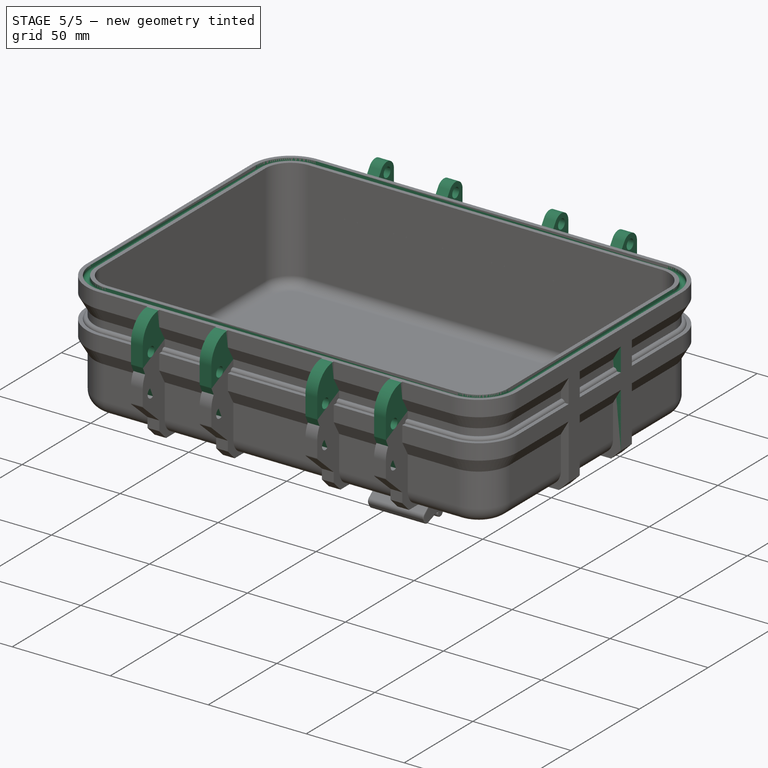
[diagram: stage 5 of 5 — iso view after this stage's code; geometry added in this stage tinted green]
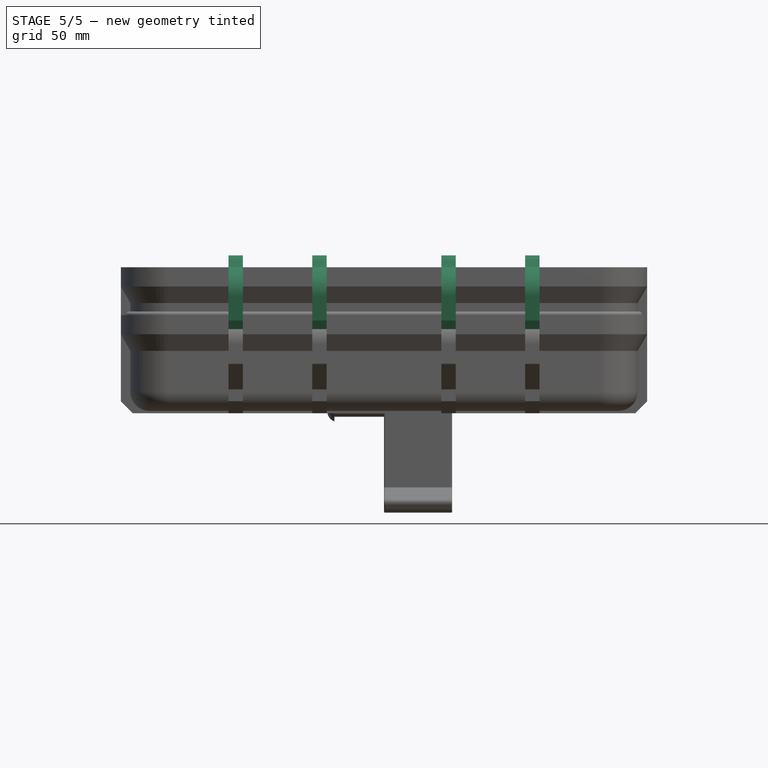
[diagram: stage 5 of 5 — front view after this stage's code; geometry added in this stage tinted green]
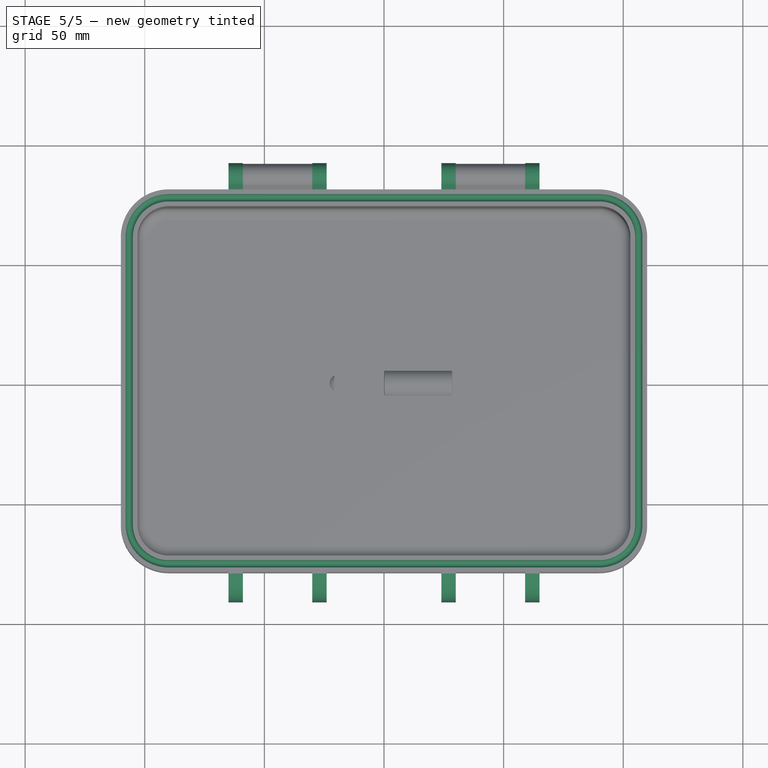
[diagram: stage 5 of 5 — top view after this stage's code; geometry added in this stage tinted green]
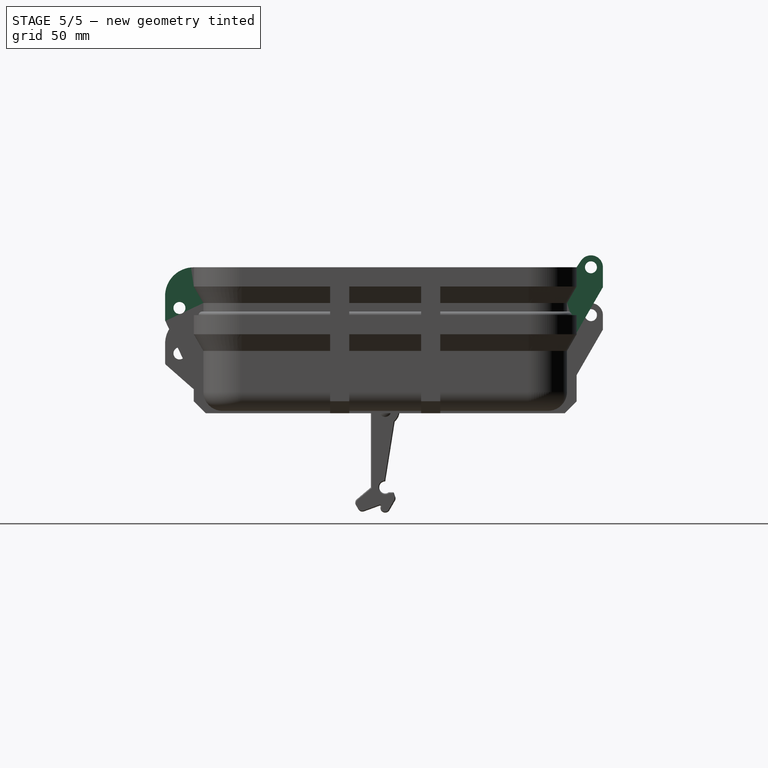
[diagram: stage 5 of 5 — right view after this stage's code; geometry added in this stage tinted green]
FEATURE [PartDesign::Mirrored] Mirrored
  BaseFeature = -> Pad001
  MirrorPlane = -> XZ_Plane
  Originals = -> [Pad001]
  Refine = true
  Suppressed = false
  TransformMode = 0
FEATURE [Sketcher::SketchObject] Sketch003
  ArcFitTolerance = 1e-06
  AttachmentOffset = pos=(0,0,65) rot=(0,0,1;0rad)
  AttachmentSupport = -> [YZ_Plane]
  ExternalGeometry = -> [Mirrored]
  FullyConstrained = true
  MakeInternals = false
  MapMode = 5
  Placement = pos=(65,0,0) rot=(0.57735,0.57735,0.57735;2.0944rad)
  sketch-geometry (16):
    g0: LineSegment StartX=-73 StartY=60 StartZ=0 EndX=-73 EndY=8 EndZ=0
    g1: ArcOfCircle CenterX=-68 CenterY=8 CenterZ=0 NormalX=0 NormalY=0 NormalZ=1 AngleXU=0 Radius=5 StartAngle=3.14159 EndAngle=4.71239
    g2: LineSegment StartX=-68 StartY=3 StartZ=0 EndX=68 EndY=3 EndZ=0
    g3: ArcOfCircle CenterX=68 CenterY=8 CenterZ=0 NormalX=0 NormalY=0 NormalZ=1 AngleXU=0 Radius=5 StartAngle=4.71239 EndAngle=6.28319
    g4: LineSegment StartX=73 StartY=8 StartZ=0 EndX=73 EndY=60 EndZ=0
    g5: LineSegment StartX=-80 StartY=60 StartZ=0 EndX=-80 EndY=4 EndZ=0
    g6: LineSegment StartX=-75 StartY=-1 StartZ=0 EndX=75 EndY=-1 EndZ=0
    g7: LineSegment StartX=80 StartY=4 StartZ=0 EndX=80 EndY=60 EndZ=0
    g8: LineSegment StartX=80 StartY=60 StartZ=0 EndX=73 EndY=60 EndZ=0
    g9: LineSegment StartX=-73 StartY=60 StartZ=0 EndX=-80 EndY=60 EndZ=0
    g10: ArcOfCircle [constr] CenterX=75 CenterY=4 CenterZ=0 NormalX=0 NormalY=0 NormalZ=1 AngleXU=0 Radius=5 StartAngle=4.71239 EndAngle=6.28319
    g11: GeomPoint [constr] X=80 Y=-1 Z=0
    g12: LineSegment StartX=75 StartY=-1 StartZ=0 EndX=80 EndY=4 EndZ=0
    g13: ArcOfCircle [constr] CenterX=-75 CenterY=4 CenterZ=0 NormalX=0 NormalY=0 NormalZ=1 AngleXU=0 Radius=5 StartAngle=3.14159 EndAngle=4.71239
    g14: GeomPoint [constr] X=-80 Y=-1 Z=0
    g15: LineSegment StartX=-80 StartY=4 StartZ=0 EndX=-75 EndY=-1 EndZ=0
  constraints (36):
    c: Coincident(g-3,g0)
    c: Coincident(g0,g-4)
    c: Tangent(g0,g1) = -1.5708
    c: Tangent(g2,g3) = -1.5708
    c: Coincident(g3,g-6)
    c: Tangent(g3,g4) = -1.5708
    c: Coincident(g1,g2)
    c: Coincident(g1,g-4)
    c: Coincident(g2,g-6)
    c: Coincident(g7,g8)
    c: Coincident(g9,g5)
    c: Vertical(g5)
    c: Vertical(g7)
    c: Horizontal(g6)
    c: Symmetric(g7,g5,g-2)
    c: PointOnObject(g0,g9)
    c: Coincident(g8,g4)
    c: PointOnObject(g9,g0)
    c: DistanceX(g9,g9) = 7
    c: PointOnObject(g11,g7)
    c: PointOnObject(g11,g6)
    c: Tangent(g7,g10) = -1.5708
    c: Tangent(g6,g10) = -1.5708
    c: Coincident(g12,g7)
    c: Coincident(g12,g6)
    c: PointOnObject(g14,g6)
    c: PointOnObject(g14,g5)
    c: Tangent(g6,g13) = -1.5708
    c: Tangent(g5,g13) = -1.5708
    c: Coincident(g15,g6)
    c: Coincident(g15,g5)
    c: Equal(g13,g10)
    c: DistanceY(g15,g15) = 5
    c: Distance(g6,g-1) = 1
    c: Horizontal(g8)
    c: Horizontal(g9)
FEATURE [PartDesign::Pad] Pad002
  BaseFeature = -> Mirrored
  Direction = (1,0,0)
  Length = 6
  Length2 = 10
  Profile = -> Sketch003
  ReferenceAxis = -> Sketch003 [N_Axis]
  Refine = true
  Reversed = true
  Suppressed = false
  Type = 0
FEATURE [Sketcher::SketchObject] Sketch005
  ArcFitTolerance = 1e-06
  AttachmentOffset = pos=(0,0,65) rot=(0,0,1;0rad)
  AttachmentSupport = -> [YZ_Plane]
  ExternalGeometry = -> [Pad002]
  FullyConstrained = true
  MakeInternals = false
  MapMode = 5
  Placement = pos=(65,0,0) rot=(0.57735,0.57735,0.57735;2.0944rad)
  sketch-geometry (16):
    g0: LineSegment StartX=-80 StartY=60 StartZ=0 EndX=-80 EndY=12.0442 EndZ=0
    g1: LineSegment StartX=-80 StartY=12.0442 StartZ=0 EndX=-91.9063 EndY=37.5774 EndZ=0
    g2: LineSegment StartX=-92 StartY=38 StartZ=0 EndX=-92 EndY=48 EndZ=0
    g3: ArcOfCircle CenterX=-80 CenterY=48 CenterZ=0 NormalX=0 NormalY=0 NormalZ=1 AngleXU=0 Radius=12 StartAngle=1.5708 EndAngle=3.14159
    g4: ArcOfCircle CenterX=-91 CenterY=38 CenterZ=0 NormalX=0 NormalY=0 NormalZ=1 AngleXU=0 Radius=1 StartAngle=3.14159 EndAngle=3.57792
    g5: GeomPoint [constr] X=-92 Y=37.7783 Z=0
    g6: LineSegment [constr] StartX=-92 StartY=43 StartZ=0 EndX=-86 EndY=43 EndZ=0
    g7: Circle CenterX=-86 CenterY=43 CenterZ=0 NormalX=0 NormalY=0 NormalZ=1 AngleXU=0 Radius=2.5
    g8: LineSegment StartX=80 StartY=60 StartZ=0 EndX=81.8333 EndY=62.7639 EndZ=0
    g9: ArcOfCircle CenterX=86 CenterY=60 CenterZ=0 NormalX=0 NormalY=0 NormalZ=1 AngleXU=0 Radius=5 StartAngle=5e-16 EndAngle=2.55591
    g10: LineSegment StartX=91 StartY=60 StartZ=0 EndX=91 EndY=52 EndZ=0
    g11: LineSegment StartX=90.866 StartY=51.5 StartZ=0 EndX=80 EndY=32.6795 EndZ=0
    g12: LineSegment StartX=80 StartY=32.6795 StartZ=0 EndX=80 EndY=60 EndZ=0
    g13: ArcOfCircle CenterX=90 CenterY=52 CenterZ=0 NormalX=0 NormalY=0 NormalZ=1 AngleXU=0 Radius=1 StartAngle=5.75959 EndAngle=6.28319
    g14: GeomPoint [constr] X=91 Y=51.7321 Z=0
    g15: Circle CenterX=86 CenterY=60 CenterZ=0 NormalX=0 NormalY=0 NormalZ=1 AngleXU=0 Radius=2.5
  constraints (39):
    c: Coincident(g-3,g0)
    c: Vertical(g0)
    c: Coincident(g0,g1)
    c: Vertical(g2)
    c: Tangent(g2,g3) = 1.5708
    c: Coincident(g3,g0)
    c: Tangent(g3,g-5)
    c: PointOnObject(g5,g2)
    c: PointOnObject(g5,g1)
    c: Tangent(g2,g4) = 1.5708
    c: Tangent(g1,g4) = 1.5708
    c: Radius(g4) = 1
    c: DistanceX(g2,g0) = 12
    c: DistanceY(g2,g2) = 10
    c: Angle(g0,g1) = 0.436332
    c: Distance(g6) = 6
    c: Symmetric(g2,g2,g6)
    c: Horizontal(g6)
    c: Diameter(g7) = 5
    c: Coincident(g7,g6)
    c: Coincident(g-4,g8)
    c: Tangent(g8,g9) = 1.5708
    c: Vertical(g10)
    c: Coincident(g11,g12)
    c: Coincident(g12,g8)
    c: Vertical(g12)
    c: PointOnObject(g14,g10)
    c: PointOnObject(g14,g11)
    c: Tangent(g10,g13) = 1.5708
    c: Tangent(g11,g13) = 1.5708
    c: Radius(g13) = 1
    c: Tangent(g9,g10) = 1.5708
    c: Diameter(g15) = 5
    c: Coincident(g15,g9)
    c: DistanceX(g8,g9) = 6
    c: Radius(g9) = 5
    c: Horizontal(g9,g8)
    c: Parallel(g11,g-6)
    c: DistanceY(g10,g10) = 8
FEATURE [PartDesign::Pad] Pad003
  BaseFeature = -> Pad002
  Direction = (1,0,0)
  Length = 6
  Length2 = 10
  Profile = -> Sketch005
  ReferenceAxis = -> Sketch005 [N_Axis]
  Refine = true
  Reversed = true
  Suppressed = false
  Type = 0
FEATURE [PartDesign::LinearPattern] LinearPattern
  Direction = -> X_Axis
  Length = 35
  Mode = 0
  Occurrences = 2
  Offset = 35
  Refine = true
  Reversed = true
  Suppressed = false
  TransformMode = 0
FEATURE [PartDesign::Mirrored] Mirrored001
  MirrorPlane = -> YZ_Plane
  Refine = true
  Suppressed = false
  TransformMode = 0
FEATURE [PartDesign::MultiTransform] MultiTransform
  BaseFeature = -> Pad003
  Originals = -> [Pad002,Pad003]
  Refine = true
  Suppressed = false
  TransformMode = 0
  Transformations = -> [LinearPattern,Mirrored001]
FEATURE [Sketcher::SketchObject] Sketch006
  ArcFitTolerance = 1e-06
  AttachmentSupport = -> [XZ_Plane]
  ExternalGeometry = -> [MultiTransform]
  FullyConstrained = true
  MakeInternals = false
  MapMode = 5
  Placement = pos=(0,0,0) rot=(1,0,0;1.5708rad)
  sketch-geometry (4):
    g0: ArcOfCircle CenterX=106.5 CenterY=58.5 CenterZ=0 NormalX=0 NormalY=0 NormalZ=1 AngleXU=0 Radius=1.5 StartAngle=3.14159 EndAngle=6.28319
    g1: ArcOfCircle CenterX=106.5 CenterY=60 CenterZ=0 NormalX=0 NormalY=0 NormalZ=1 AngleXU=0 Radius=1.5 StartAngle=-9e-16 EndAngle=3.14159
    g2: LineSegment StartX=105 StartY=58.5 StartZ=0 EndX=105 EndY=60 EndZ=0
    g3: LineSegment StartX=108 StartY=58.5 StartZ=0 EndX=108 EndY=60 EndZ=0
  constraints (9):
    c: Tangent(g0,g2) = 1.5708
    c: Tangent(g0,g3) = -1.5708
    c: Tangent(g1,g2) = 1.5708
    c: Tangent(g1,g3) = -1.5708
    c: Equal(g0,g1)
    c: Vertical(g3)
    c: Symmetric(g-3,g-4,g1)
    c: Radius(g1) = 1.5
    c: DistanceY(g-1,g0) = 58.5
FEATURE [PartDesign::SubtractivePipe] SubtractivePipe
  AuxilleryCurvelinear = true
  AuxillerySpineTangent = false
  BaseFeature = -> MultiTransform
  Binormal = (0,0,0)
  Mode = 0
  Profile = -> Sketch006
  Refine = true
  Spine = -> Sketch
  SpineTangent = false
  Suppressed = false
  Transformation = 0
  Transition = 0
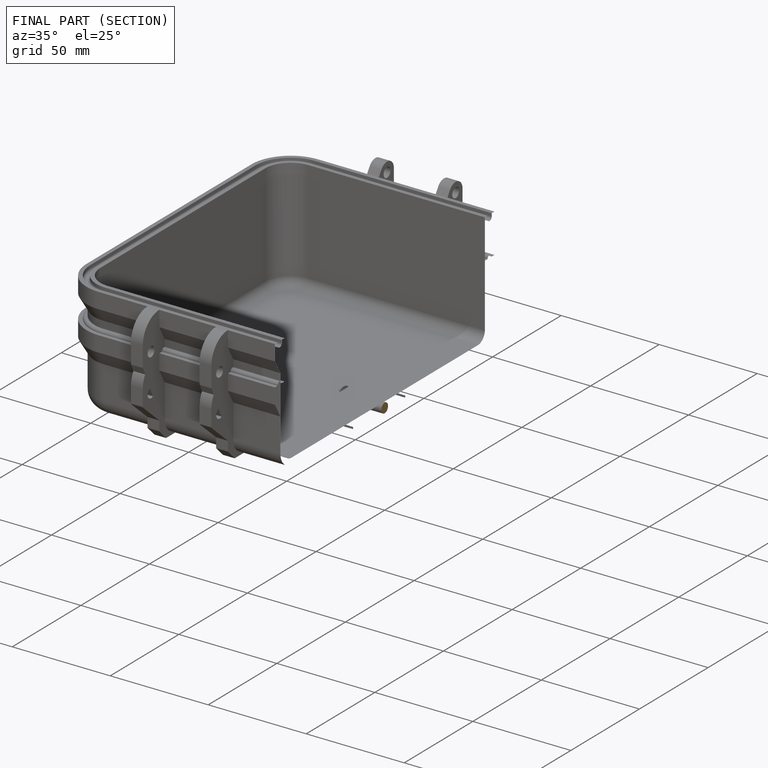
[diagram: finished part — half-section view (interior)]
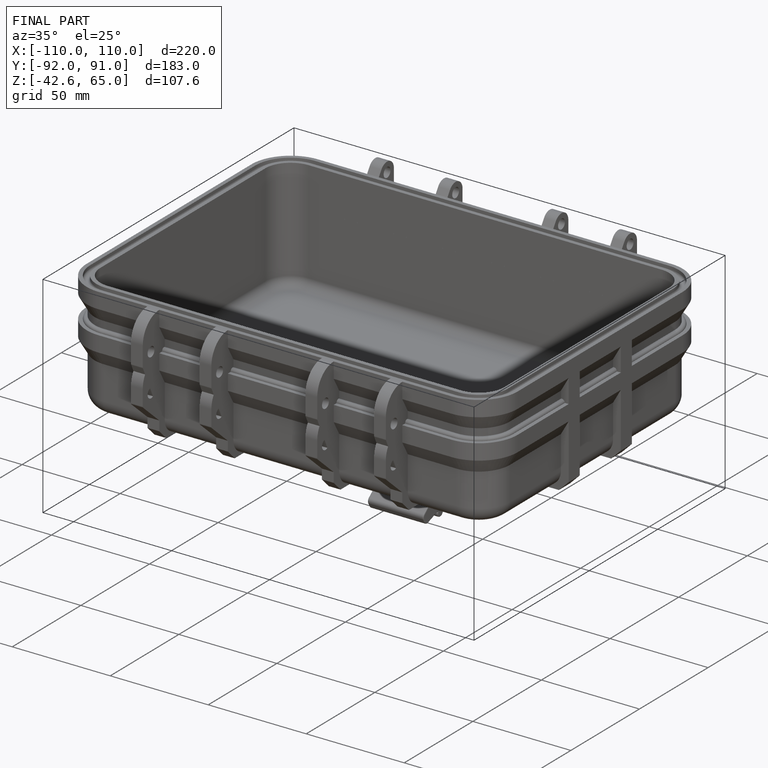
[diagram: finished part — iso view with bounding-box wireframe]
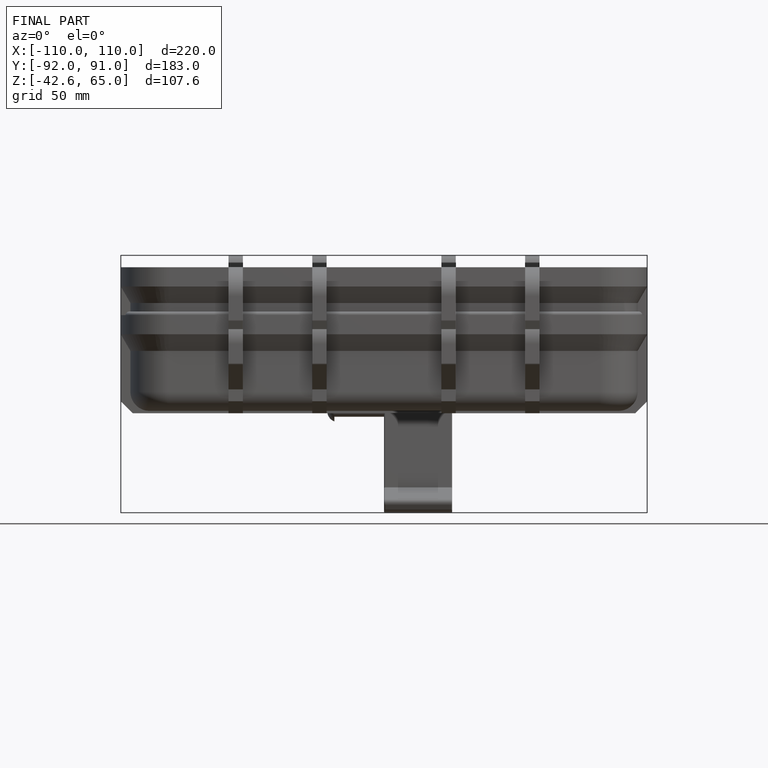
[diagram: finished part — front view with bounding-box wireframe]
